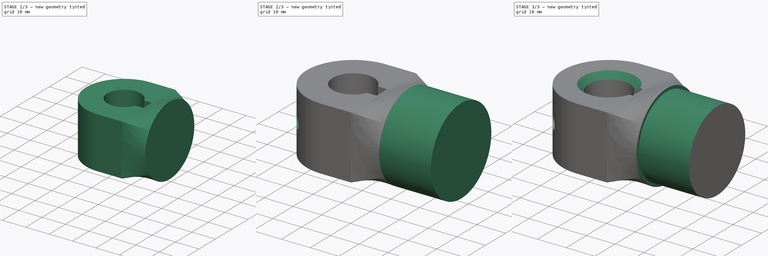
[diagram: build sequence overview — one tinted view per stage of 3, left to right]
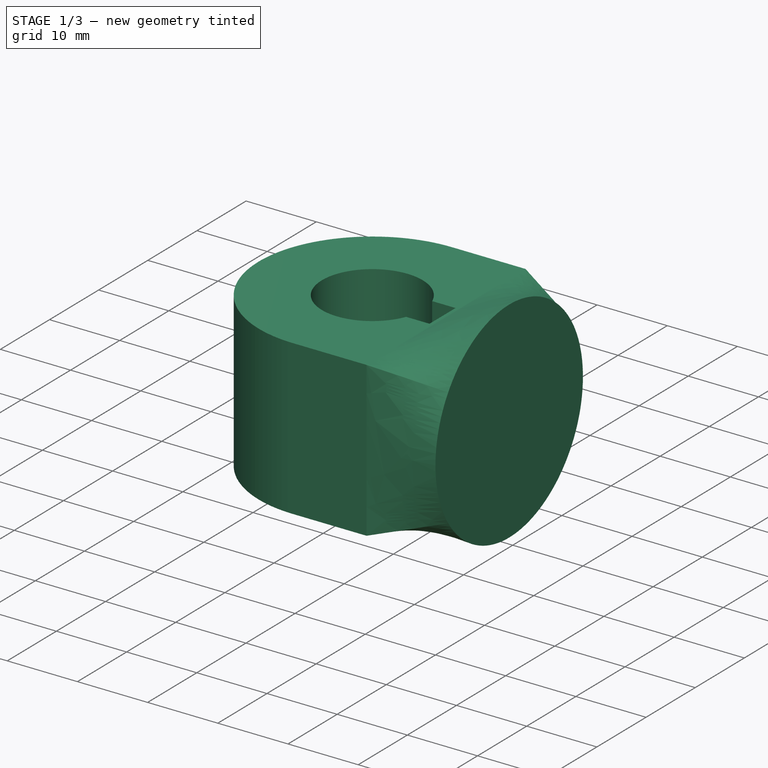
[diagram: stage 1 of 3 — iso view after this stage's code; geometry added in this stage tinted green]
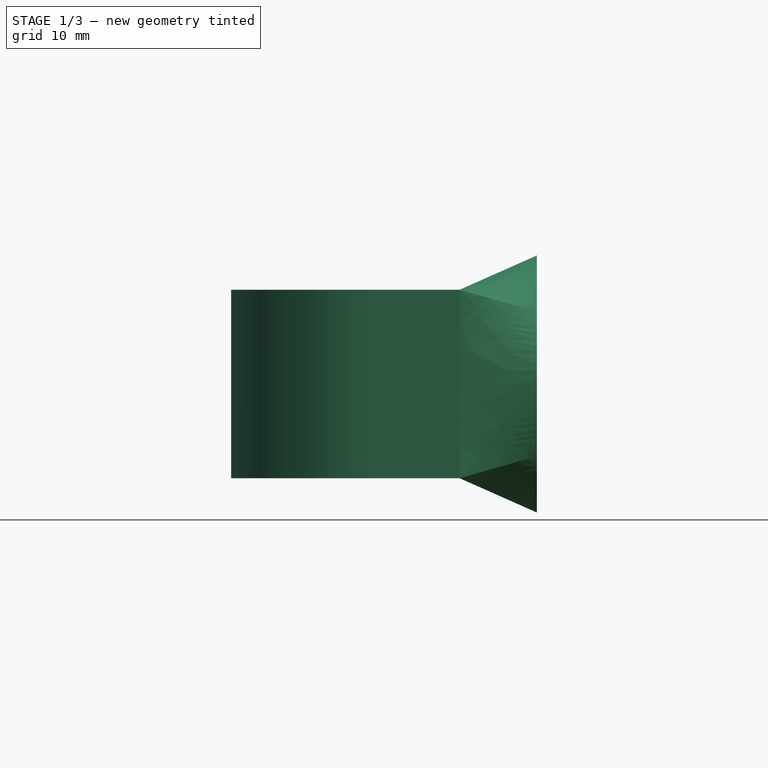
[diagram: stage 1 of 3 — front view after this stage's code; geometry added in this stage tinted green]
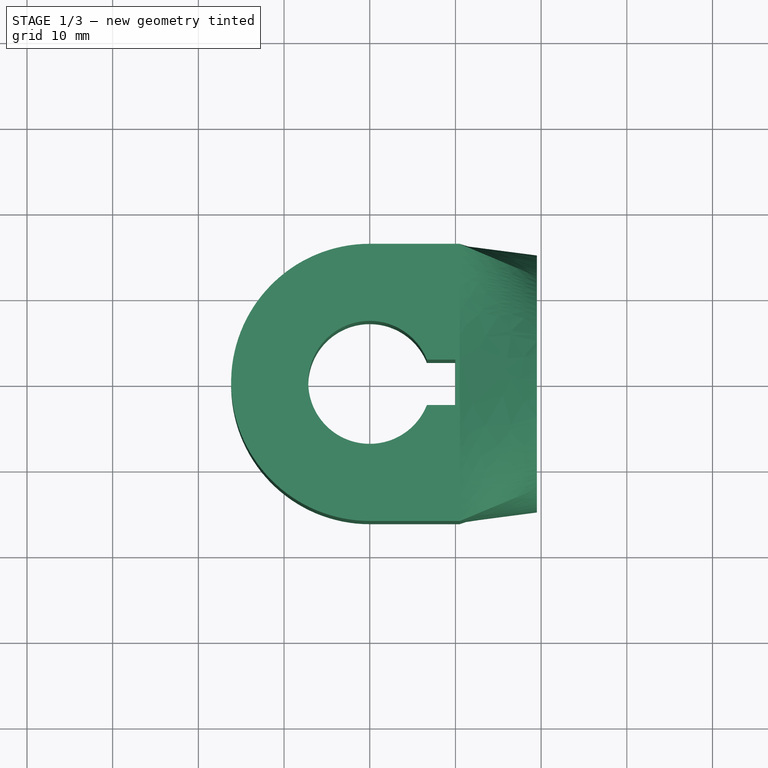
[diagram: stage 1 of 3 — top view after this stage's code; geometry added in this stage tinted green]
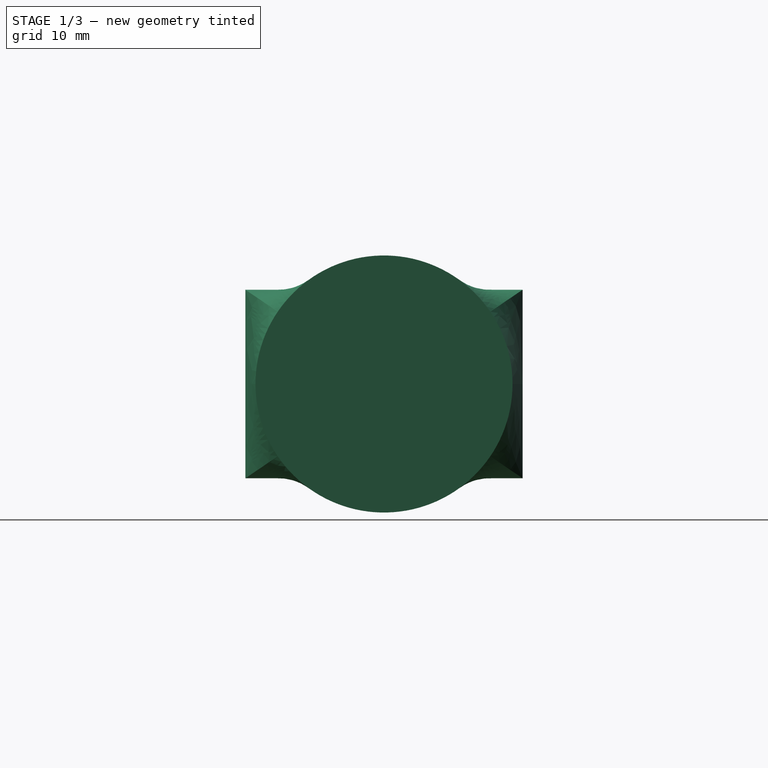
[diagram: stage 1 of 3 — right view after this stage's code; geometry added in this stage tinted green]
FCSTD DOCUMENT  (FreeCAD 1.0R38641 +468 (Git))
Label: 00nema34bicepmotor
License: All rights reserved
LicenseURL: https://en.wikipedia.org/wiki/All_rights_reserved
objects: Sketcher::SketchObject×6, PartDesign::Pad×2, PartDesign::Plane×2, PartDesign::Pocket×2, PartDesign::AdditiveLoft×1, PartDesign::PolarPattern×1, PartDesign::Chamfer×1, PartDesign::Body×1
note: 35 computed .brp shape members not serialized (recipe doc carries the construction recipe); baked Part::Feature solids carry a one-line shape summary decoded from their .brp

FEATURE [Sketcher::SketchObject] Sketch001
  ArcFitTolerance = 1e-06
  FullyConstrained = false
  MakeInternals = false
  MapMode = 5
  Placement = pos=(-6.45279e-07,-8.49505e-08,6.09934) rot=(0.128717,-0.977726,0;0rad)
  sketch-geometry (13):
    g0: Circle [constr] CenterX=0 CenterY=0 CenterZ=0 NormalX=0 NormalY=0 NormalZ=1 AngleXU=0 Radius=16.175
    g1: LineSegment StartX=10.5 StartY=16.175 StartZ=0 EndX=1.8e-15 EndY=16.175 EndZ=0
    g2: ArcOfCircle CenterX=0 CenterY=0 CenterZ=0 NormalX=0 NormalY=0 NormalZ=1 AngleXU=0 Radius=16.175 StartAngle=1.5708 EndAngle=4.71239
    g3: LineSegment StartX=-3e-15 StartY=-16.175 StartZ=0 EndX=10.5 EndY=-16.175 EndZ=0
    g4: LineSegment StartX=10.5 StartY=16.175 StartZ=0 EndX=10.5 EndY=-16.175 EndZ=0
    g5: Circle [constr] CenterX=0 CenterY=0 CenterZ=0 NormalX=0 NormalY=0 NormalZ=1 AngleXU=0 Radius=7.175
    g6: GeomPoint X=10 Y=0 Z=0
    g7: ArcOfCircle CenterX=0 CenterY=0 CenterZ=0 NormalX=0 NormalY=0 NormalZ=1 AngleXU=0 Radius=7.175 StartAngle=0.378297 EndAngle=5.90489
    g8: LineSegment StartX=10 StartY=-2.65 StartZ=0 EndX=10 EndY=2.65 EndZ=0
    g9: LineSegment StartX=10 StartY=2.65 StartZ=0 EndX=6.66769 EndY=2.65 EndZ=0
    g10: LineSegment StartX=10 StartY=-2.65 StartZ=0 EndX=6.66769 EndY=-2.65 EndZ=0
    g11: GeomPoint X=-7.175 Y=0 Z=0
    g12: GeomPoint X=-16.175 Y=-2.36977e-09 Z=0
  constraints (32):
    c: Coincident(g0,g-1)
    c: PointOnObject(g1,g0)
    c: Tangent(g1,g0)
    c: PointOnObject(g1,g-2)
    c: Coincident(g2,g0)
    c: Coincident(g2,g1)
    c: PointOnObject(g2,g-2)
    c: Tangent(g2,g3) = -1.5708
    c: Coincident(g1,g4)
    c: Coincident(g4,g3)
    c: Vertical(g4)
    c: Coincident(g5,g0)
    c: Diameter(g5) = 14.35
    c: PointOnObject(g6,g-1)
    c: DistanceX(g0,g6) = 10
    c: Coincident(g7,g0)
    c: PointOnObject(g7,g5)
    c: Vertical(g7,g7)
    c: DistanceY(g7,g7) = 5.3
    c: Vertical(g8)
    c: Coincident(g8,g9)
    c: Coincident(g9,g7)
    c: Horizontal(g9)
    c: Coincident(g8,g10)
    c: Coincident(g10,g7)
    c: PointOnObject(g6,g8)
    c: Horizontal(g10)
    c: PointOnObject(g11,g7)
    c: PointOnObject(g12,g2)
    c: PointOnObject(g11,g-1)
    c: DistanceX(g12,g11) = 9
    c: DistanceX(g1,g1) = 10.5
FEATURE [PartDesign::Pad] Pad
  Direction = (-1.06535e-07,-1.40252e-08,1)
  Length = 22
  Length2 = 10
  Midplane = true
  Placement = pos=(-6.45279e-07,-8.49505e-08,6.09934) rot=(0.128717,-0.977726,0;0rad)
  Profile = -> Sketch001
  ReferenceAxis = -> Sketch001 [N_Axis]
  Refine = true
  Suppressed = false
  Type = 0
FEATURE [PartDesign::Plane] DatumPlane001
  AttachmentOffset = pos=(0,0,9) rot=(0,0,1;0rad)
  AttachmentSupport = -> [Pad]
  Length = 60
  MapMode = 5
  Placement = pos=(19.5,-8.49506e-08,6.09934) rot=(0.57735,0.57735,0.57735;2.0944rad)
  ResizeMode = 0
  Width = 60
FEATURE [Sketcher::SketchObject] Sketch002
  ArcFitTolerance = 1e-06
  AttachmentSupport = -> [DatumPlane001]
  ExternalGeometry = -> [Pad]
  FullyConstrained = true
  MakeInternals = false
  MapMode = 5
  Placement = pos=(19.5,-8.49506e-08,6.09934) rot=(0.57735,0.57735,0.57735;2.0944rad)
  sketch-geometry (1):
    g0: Circle CenterX=-1.20013e-05 CenterY=3.6e-15 CenterZ=0 NormalX=0 NormalY=0 NormalZ=1 AngleXU=0 Radius=15
  constraints (2):
    c: Diameter(g0) = 30
    c: Symmetric(g-3,g-4,g0)
FEATURE [PartDesign::AdditiveLoft] AdditiveLoft
  BaseFeature = -> Pad
  Closed = false
  Placement = pos=(-6.45279e-07,-8.49505e-08,6.09934) rot=(0.128717,-0.977726,0;0rad)
  Profile = -> Pad [Face4]
  Refine = true
  Ruled = false
  Sections = -> [Sketch002]
  Suppressed = false
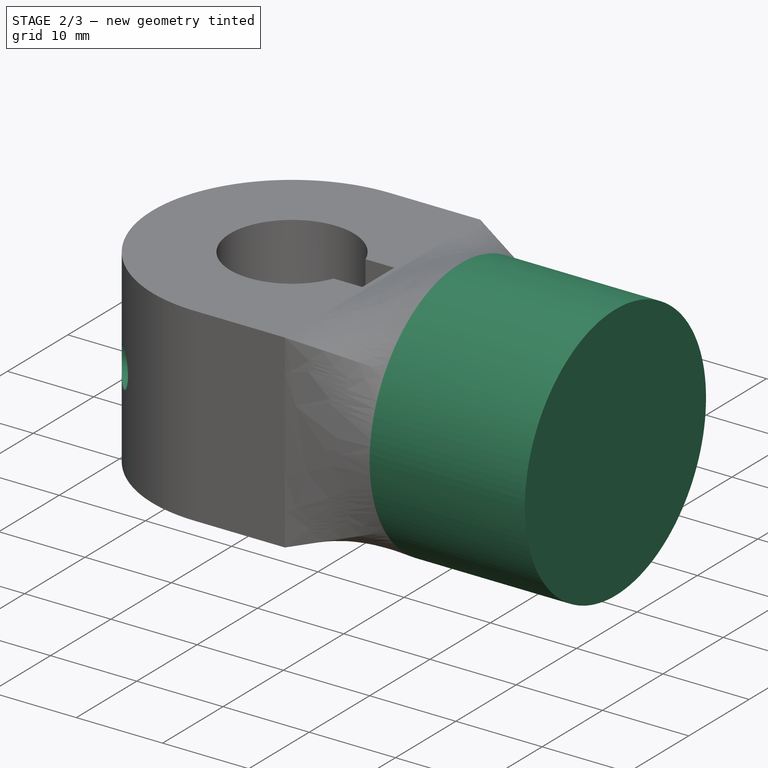
[diagram: stage 2 of 3 — iso view after this stage's code; geometry added in this stage tinted green]
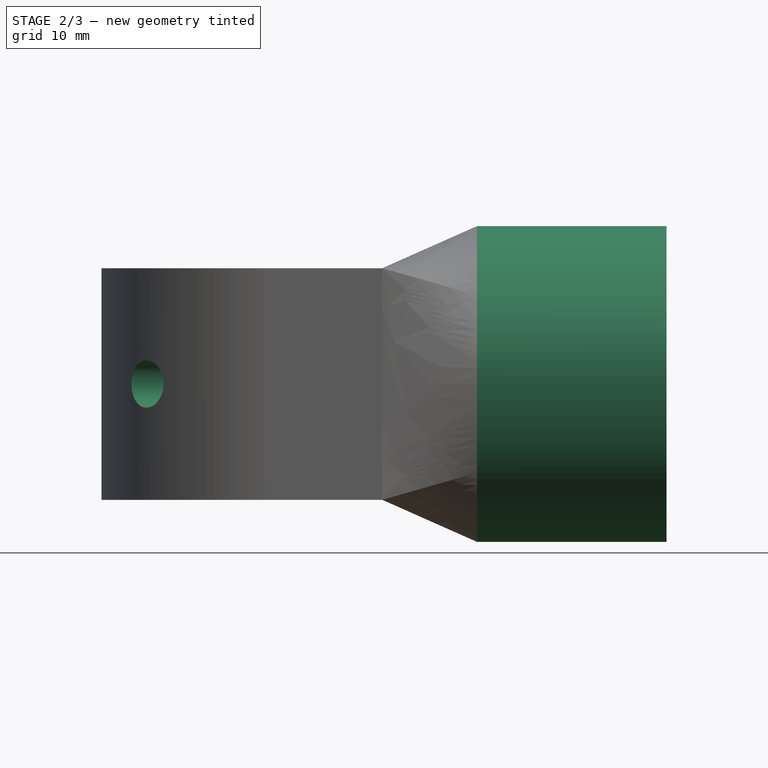
[diagram: stage 2 of 3 — front view after this stage's code; geometry added in this stage tinted green]
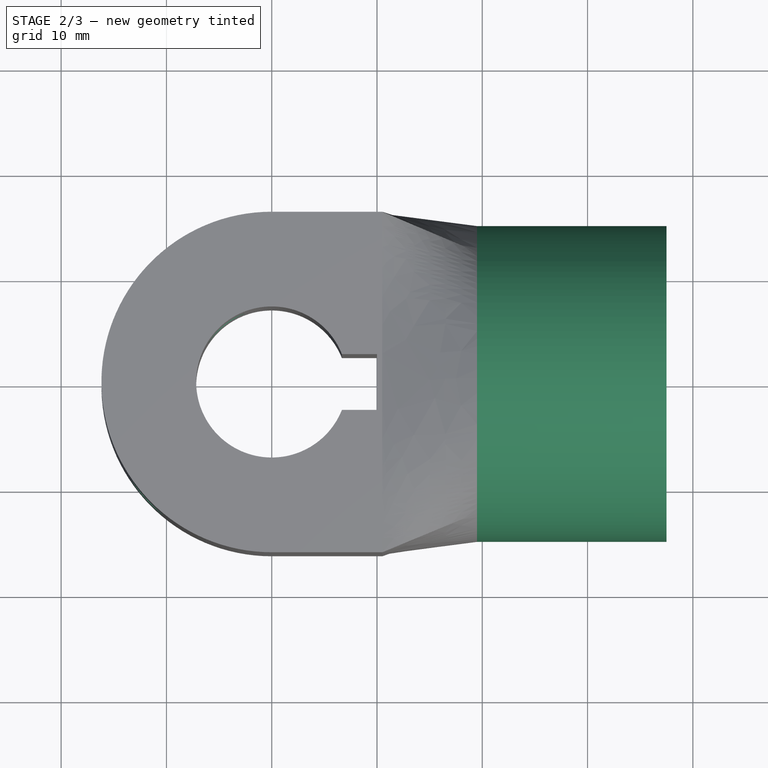
[diagram: stage 2 of 3 — top view after this stage's code; geometry added in this stage tinted green]
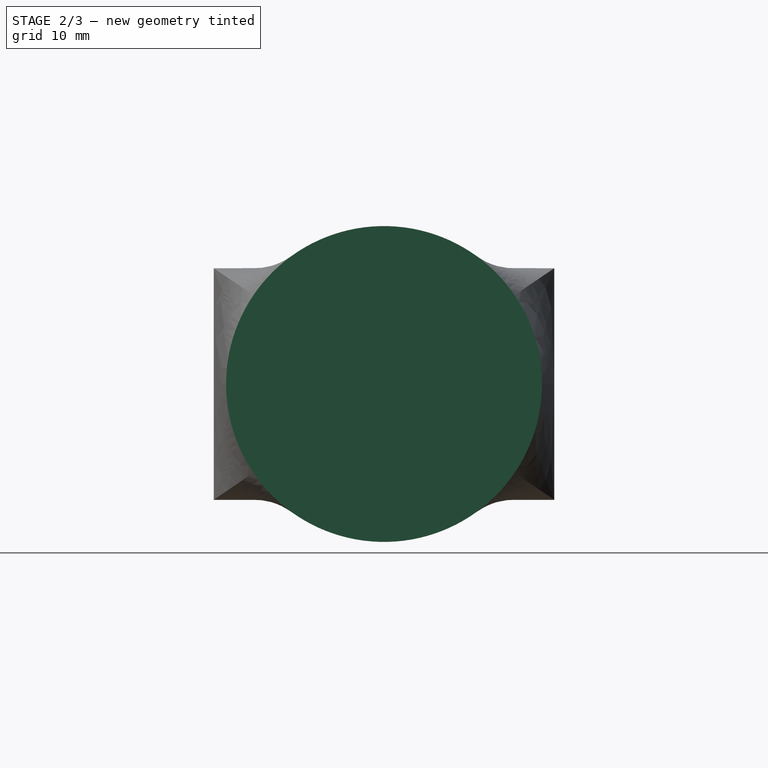
[diagram: stage 2 of 3 — right view after this stage's code; geometry added in this stage tinted green]
FEATURE [Sketcher::SketchObject] Sketch003
  ArcFitTolerance = 1e-06
  AttachmentSupport = -> [AdditiveLoft]
  ExternalGeometry = -> [AdditiveLoft]
  FullyConstrained = true
  MakeInternals = false
  MapMode = 5
  Placement = pos=(19.5,-8.49506e-08,6.09934) rot=(0.57735,0.57735,0.57735;2.0944rad)
  sketch-geometry (1):
    g0: Circle CenterX=-1.20013e-05 CenterY=-6.2e-15 CenterZ=0 NormalX=0 NormalY=0 NormalZ=1 AngleXU=0 Radius=15
  constraints (2):
    c: Coincident(g0,g-3)
    c: PointOnObject(g-3,g0)
FEATURE [PartDesign::Pad] Pad001
  BaseFeature = -> AdditiveLoft
  Direction = (1,-1.3e-15,1.06535e-07)
  Length = 18
  Length2 = 10
  Placement = pos=(-6.45279e-07,-8.49505e-08,6.09934) rot=(0.128717,-0.977726,0;0rad)
  Profile = -> Sketch003
  ReferenceAxis = -> Sketch003 [N_Axis]
  Refine = true
  Suppressed = false
  Type = 0
FEATURE [PartDesign::Plane] DatumPlane
  AttachmentOffset = pos=(0,0,0) rot=(0,1,0;0.785398rad)
  AttachmentSupport = -> [Pad001]
  Length = 82.6028
  MapMode = 45
  Placement = pos=(-0.959,-8.49505e-08,6.09934) rot=(0.281085,0.678598,0.678598;2.59356rad)
  ResizeMode = 0
  Width = 61.8921
FEATURE [Sketcher::SketchObject] Sketch
  ArcFitTolerance = 1e-06
  AttachmentSupport = -> [DatumPlane]
  FullyConstrained = true
  MakeInternals = false
  MapMode = 5
  Placement = pos=(-0.959,-8.49505e-08,6.09934) rot=(0.281085,0.678598,0.678598;2.59356rad)
  sketch-geometry (1):
    g0: Circle CenterX=0 CenterY=0 CenterZ=0 NormalX=0 NormalY=0 NormalZ=1 AngleXU=0 Radius=2.25
  constraints (2):
    c: Coincident(g0,g-1)
    c: Diameter(g0) = 4.5
FEATURE [PartDesign::Pocket] Pocket
  BaseFeature = -> Pad001
  Direction = (-0.707107,-0.707107,-8.52486e-08)
  Length = 17
  Length2 = 5
  Placement = pos=(-6.45279e-07,-8.49505e-08,6.09934) rot=(0.128717,-0.977726,0;0rad)
  Profile = -> Sketch
  ReferenceAxis = -> Sketch [N_Axis]
  Refine = true
  Suppressed = false
  Type = 1
FEATURE [PartDesign::PolarPattern] PolarPattern
  Angle = 149
  Axis = -> Z_Axis
  BaseFeature = -> Pocket
  Mode = 1
  Occurrences = 2
  Offset = 90
  Originals = -> [Pocket]
  Placement = pos=(-6.45279e-07,-8.49505e-08,6.09934) rot=(0.128717,-0.977726,0;0rad)
  Refine = true
  Reversed = true
  Suppressed = false
  TransformMode = 0
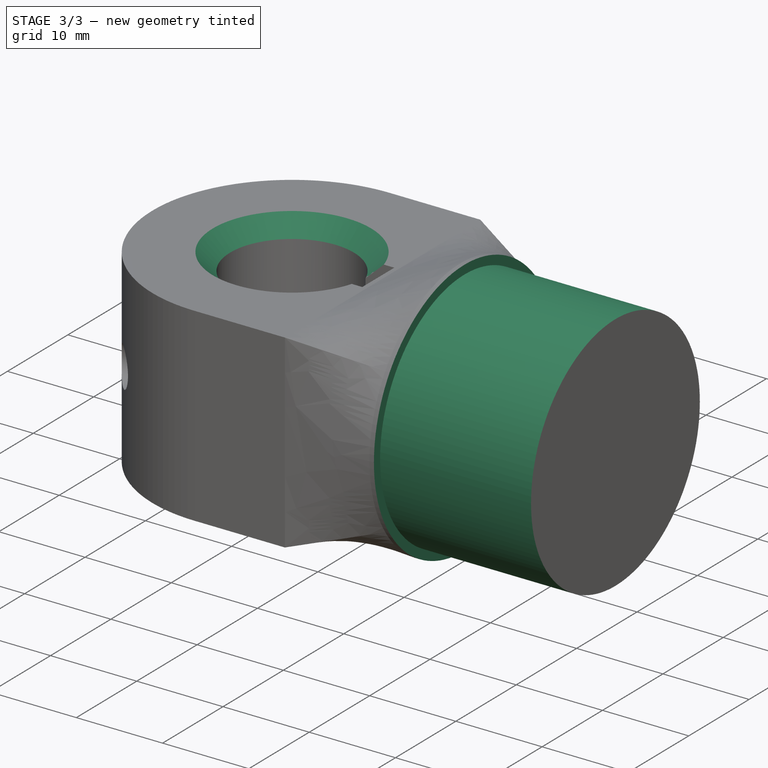
[diagram: stage 3 of 3 — iso view after this stage's code; geometry added in this stage tinted green]
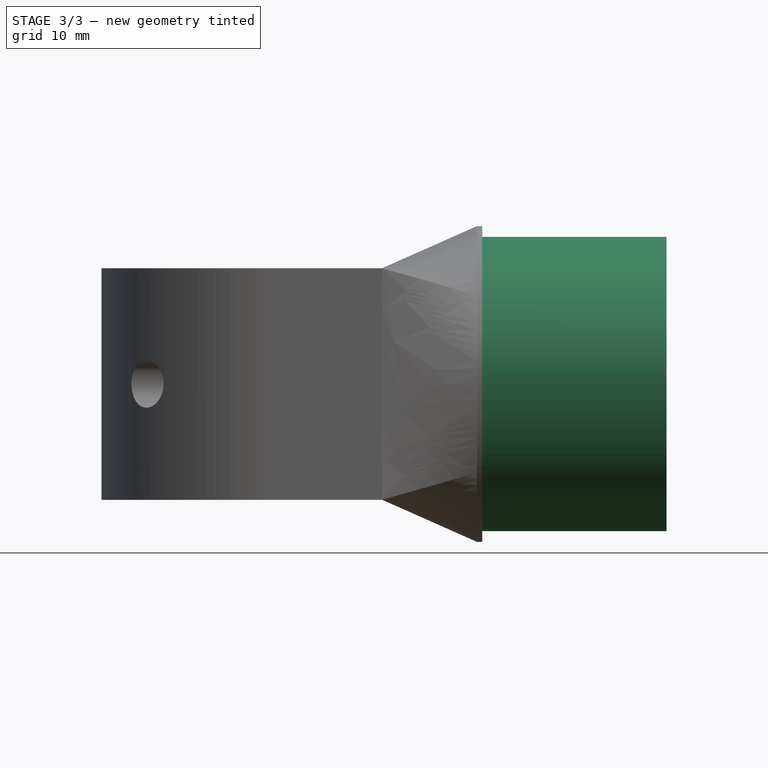
[diagram: stage 3 of 3 — front view after this stage's code; geometry added in this stage tinted green]
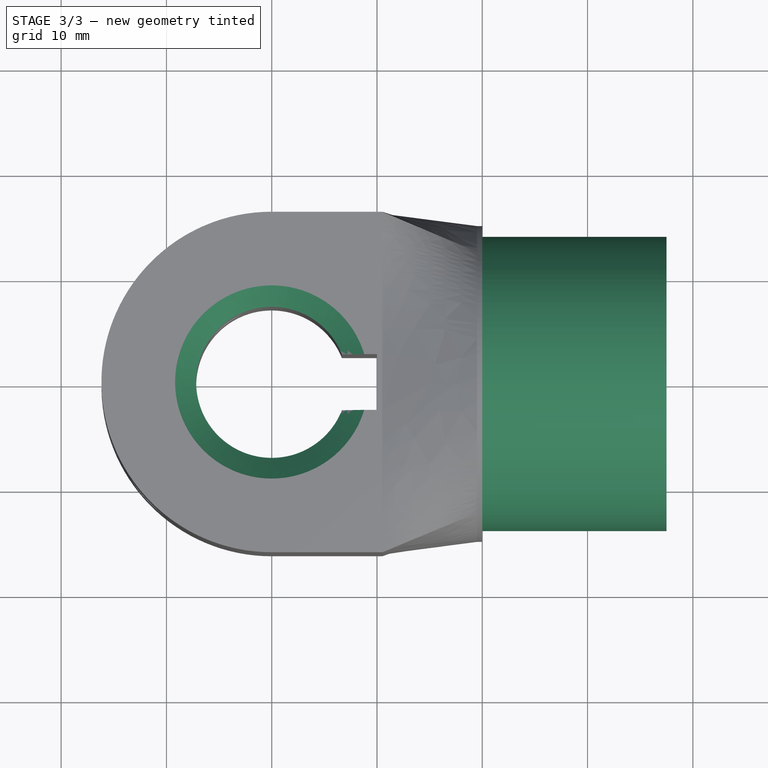
[diagram: stage 3 of 3 — top view after this stage's code; geometry added in this stage tinted green]
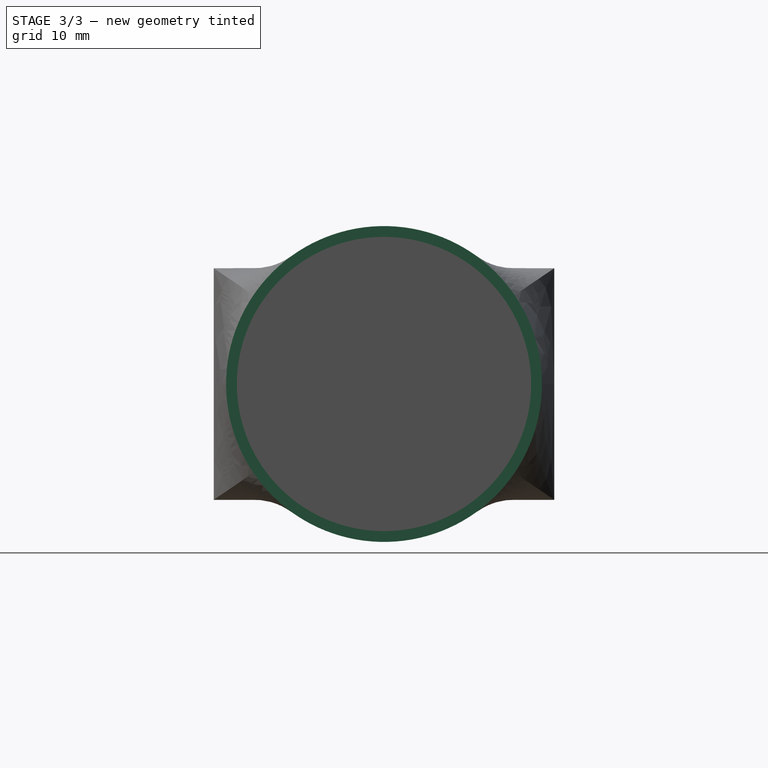
[diagram: stage 3 of 3 — right view after this stage's code; geometry added in this stage tinted green]
FEATURE [PartDesign::Chamfer] Chamfer
  Angle = 45
  Base = -> PolarPattern [Edge26]
  BaseFeature = -> PolarPattern
  ChamferType = 0
  FlipDirection = false
  Placement = pos=(-6.45279e-07,-8.49505e-08,6.09934) rot=(0.128717,-0.977726,0;0rad)
  Refine = true
  Size = 2
  Size2 = 1
  SupportTransform = false
  Suppressed = false
  UseAllEdges = false
FEATURE [Sketcher::SketchObject] Sketch004
  ArcFitTolerance = 1e-06
  AttachmentSupport = -> [Chamfer]
  FullyConstrained = false
  MakeInternals = false
  MapMode = 5
  Placement = pos=(37.5,-8.49506e-08,6.09934) rot=(0.57735,0.57735,0.57735;2.0944rad)
  sketch-geometry (2):
    g0: Circle CenterX=0 CenterY=0 CenterZ=0 NormalX=0 NormalY=0 NormalZ=1 AngleXU=0 Radius=13.975
    g1: Circle CenterX=0 CenterY=0 CenterZ=0 NormalX=0 NormalY=0 NormalZ=1 AngleXU=0 Radius=27.8014
  constraints (3):
    c: Coincident(g0,g-1)
    c: Coincident(g1,g0)
    c: Diameter(g0) = 27.95
FEATURE [PartDesign::Pocket] Pocket001
  BaseFeature = -> Chamfer
  Direction = (-1,1.4e-15,-1.06535e-07)
  Length = 17.5
  Length2 = 5
  Placement = pos=(-6.45279e-07,-8.49505e-08,6.09934) rot=(0.128717,-0.977726,0;0rad)
  Profile = -> Sketch004
  ReferenceAxis = -> Sketch004 [N_Axis]
  Refine = true
  Suppressed = false
  Type = 0
FEATURE [Sketcher::SketchObject] Sketch005
  ArcFitTolerance = 1e-06
  AttachmentSupport = -> [XY_Plane]
  ExternalGeometry = -> [Pocket001]
  FullyConstrained = true
  MakeInternals = false
  MapMode = 5
  sketch-geometry (1):
    g0: GeomPoint X=37.5 Y=-8.49506e-08 Z=0
  constraints (3):
    c: DistanceX(g-1,g0) = 37.5
    c: Coincident(g0,g-3)
    c: DistanceX(g-1,g-4) = 20
FEATURE [PartDesign::Body] Body
  AllowCompound = false
  Group = -> [Sketch001,Pad,DatumPlane001,Sketch002,AdditiveLoft,Sketch003,Pad001,DatumPlane,Sketch,Pocket,PolarPattern,Chamfer,Sketch004,Pocket001,Sketch005]
  Origin = -> Origin
  Tip = -> Pocket001
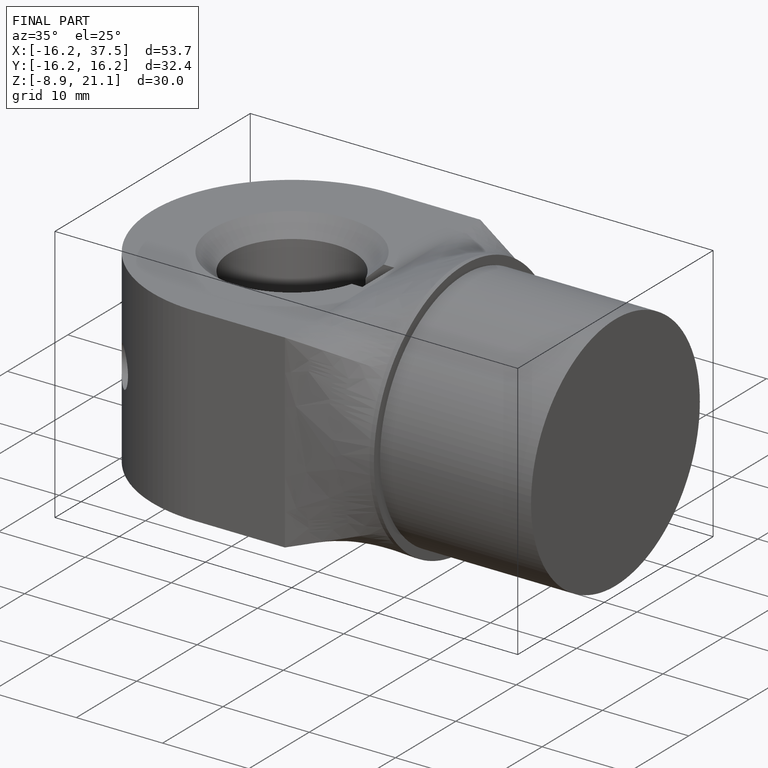
[diagram: finished part — iso view with bounding-box wireframe]
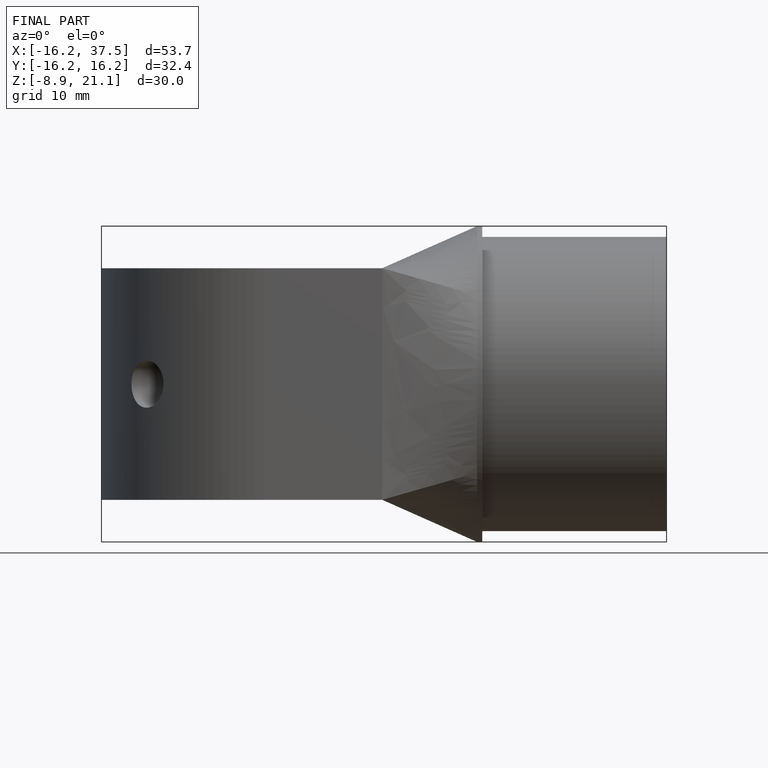
[diagram: finished part — front view with bounding-box wireframe]
